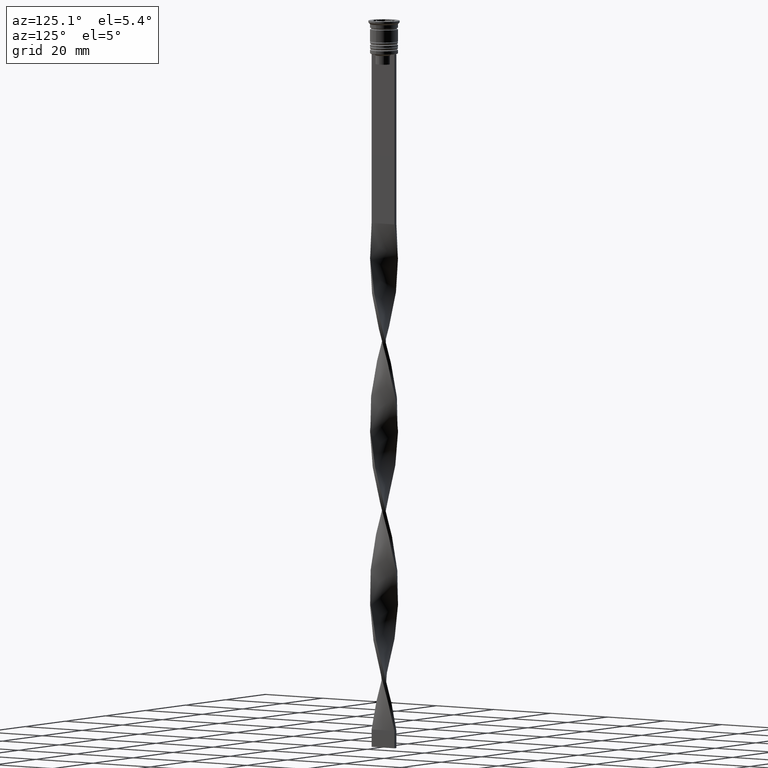
[diagram: clean part render]
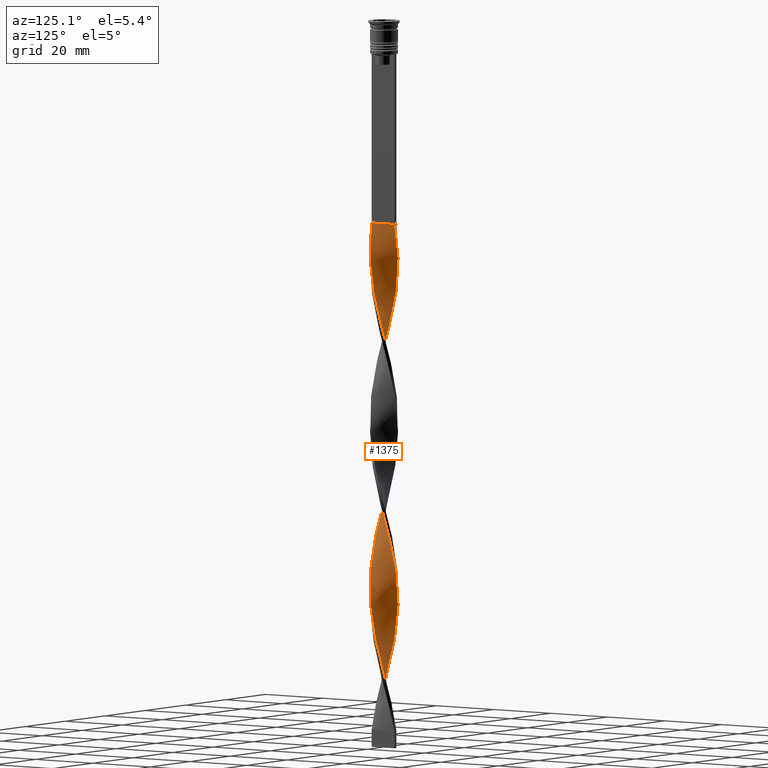
[diagram: same view with one face highlighted and labeled with its STEP entity id]
A machine part, auxiliary view. The second image highlights one B-rep face of the part: STEP entity #1375.
In plain terms, the highlighted face is a freeform B-spline surface patch.
Its self-contained STEP definition (entity closure, byte-faithful):
#2 = CARTESIAN_POINT ( 'NONE',  ( -3.856468655234276621, -1.231739002543614125, -134.3627450980391984 ) ) ;
#32 = CARTESIAN_POINT ( 'NONE',  ( -1.226484621108232531, -3.840017639827321805, -104.3039215686274446 ) ) ;
#51 = CARTESIAN_POINT ( 'NONE',  ( -3.856468655234276621, 1.231739002543613237, -177.3039215686274304 ) ) ;
#57 = CARTESIAN_POINT ( 'NONE',  ( 3.927262761293755400, -0.9829235285346255013, -77.10784313725490335 ) ) ;
#66 = CARTESIAN_POINT ( 'NONE',  ( 1.341092642212325936, -3.819817009255230822, -114.3235294117646959 ) ) ;
#67 = CARTESIAN_POINT ( 'NONE',  ( -0.5000000000000005551, -4.000000000000000000, -107.1666666666666572 ) ) ;
#73 = CARTESIAN_POINT ( 'NONE',  ( 4.017136395662697979, 0.5021420494578370253, -82.83333333333332860 ) ) ;
#83 = CARTESIAN_POINT ( 'NONE',  ( 3.710471077655234762, -1.575564781874742026, -127.2058823529411740 ) ) ;
#85 = CARTESIAN_POINT ( 'NONE',  ( -2.240090901653235100, -3.372169066272034499, -100.0098039215686327 ) ) ;
#93 = CARTESIAN_POINT ( 'NONE',  ( 1.341092642212326824, 3.819817009255229934, -100.0098039215686327 ) ) ;
#107 = CARTESIAN_POINT ( 'NONE',  ( 3.064287033196558152, 2.619187847059358365, -144.3823529411764639 ) ) ;
#109 = CARTESIAN_POINT ( 'NONE',  ( -2.530837219374230340, -3.137652461479778943, -98.57843137254901933 ) ) ;
#115 = CARTESIAN_POINT ( 'NONE',  ( 3.710471077655235206, 1.575564781874741138, -87.12745098039215463 ) ) ;
#120 = B_SPLINE_CURVE_WITH_KNOTS ( 'NONE', 3,
 ( #3017, #2732, #2446, #3684 ),
 .UNSPECIFIED., .F., .F.,
 ( 4, 4 ),
 ( 0.000000000000000000, 1.000000000000000000 ),
 .UNSPECIFIED. ) ;
#128 = CARTESIAN_POINT ( 'NONE',  ( -0.8706545849681186500, -3.953668176878985641, -203.0686274509803582 ) ) ;
#130 = CARTESIAN_POINT ( 'NONE',  ( -3.306990529297890724, -2.335239837431193788, -94.28431372549020750 ) ) ;
#137 = CARTESIAN_POINT ( 'NONE',  ( -1.582314657248345080, 3.726367102775659301, -111.4607843137254974 ) ) ;
#147 = CARTESIAN_POINT ( 'NONE',  ( 0.2435115214243305515, 4.023767157643892034, -104.3039215686274446 ) ) ;
#150 = CARTESIAN_POINT ( 'NONE',  ( -2.530837219374230340, -3.137652461479778943, -195.9117647058823479 ) ) ;
#159 = CARTESIAN_POINT ( 'NONE',  ( 4.017136395662697979, 0.5021420494578370253, -180.1666666666666288 ) ) ;
#171 = CARTESIAN_POINT ( 'NONE',  ( 0.6163684578805426195, 4.001202492166771485, -102.8725490196078312 ) ) ;
#173 = CARTESIAN_POINT ( 'NONE',  ( 3.064287033196558152, 2.619187847059358365, -144.3823529411764639 ) ) ;
#178 = CARTESIAN_POINT ( 'NONE',  ( -2.890751590931330828, -2.809547159157144591, -141.5196078431372371 ) ) ;
#185 = CARTESIAN_POINT ( 'NONE',  ( 2.821583537095227356, -2.903135856687522942, -68.51960784313723707 ) ) ;
#193 = CARTESIAN_POINT ( 'NONE',  ( 0.1293454150318811002, -4.046331823121016136, -154.4019607843137294 ) ) ;
#194 = EDGE_CURVE ( 'NONE', #1335, #691, #1128, .T. ) ;
#199 = CARTESIAN_POINT ( 'NONE',  ( -1.226484621108231421, 3.840017639827321805, -110.0294117647058698 ) ) ;
#201 = CARTESIAN_POINT ( 'NONE',  ( -3.493386227310586456, -2.011529931876905319, -190.1862745098039227 ) ) ;
#209 = CARTESIAN_POINT ( 'NONE',  ( 3.679781925323283076, -1.687820026322619293, -171.5784313725490620 ) ) ;
#221 = CARTESIAN_POINT ( 'NONE',  ( 3.564473500076194235, 1.919390561205868817, -185.8921568627451109 ) ) ;
#224 = CARTESIAN_POINT ( 'NONE',  ( -3.564473500076193790, 1.919390561205869261, -174.4411764705882320 ) ) ;
#236 = CARTESIAN_POINT ( 'NONE',  ( 3.357783987531980152, 2.230535068783684238, -187.3235294117646959 ) ) ;
#243 = CARTESIAN_POINT ( 'NONE',  ( 2.530837219374230340, -3.137652461479778943, -164.4215686274509665 ) ) ;
#249 = CARTESIAN_POINT ( 'NONE',  ( -3.306990529297891168, -2.335239837431193788, -94.28431372549020750 ) ) ;
#261 = CARTESIAN_POINT ( 'NONE',  ( 3.856468655234276621, 1.231739002543613681, -183.0294117647059124 ) ) ;
#268 = CARTESIAN_POINT ( 'NONE',  ( -2.890751590931329940, 2.809547159157145479, -72.81372549019607732 ) ) ;
#273 = CARTESIAN_POINT ( 'NONE',  ( -0.4999999999999994449, 4.000000000000000000, -204.5000000000000000 ) ) ;
#282 = CARTESIAN_POINT ( 'NONE',  ( -0.1293454150318815721, 4.046331823121016136, -203.0686274509803582 ) ) ;
#291 = CARTESIAN_POINT ( 'NONE',  ( -4.029070884911789996, 0.1287936502943097528, -84.26470588235294201 ) ) ;
#303 = CARTESIAN_POINT ( 'NONE',  ( 2.630408706874893365, 3.077414741952792188, -191.6176470588235077 ) ) ;
#311 = CARTESIAN_POINT ( 'NONE',  ( -3.357783987531980152, 2.230535068783684682, -75.67647058823528994 ) ) ;
#329 = CARTESIAN_POINT ( 'NONE',  ( 0.1293454150318809337, 4.046331823121015248, -59.93137254901961342 ) ) ;
#348 = CARTESIAN_POINT ( 'NONE',  ( 2.240090901653234656, 3.372169066272035831, -148.6764705882353326 ) ) ;
#350 = CARTESIAN_POINT ( 'NONE',  ( -2.890751590931329940, 2.809547159157145479, -72.81372549019607732 ) ) ;
#360 = CARTESIAN_POINT ( 'NONE',  ( 2.325278115975899951, 3.292883490705914795, -95.71568627450979250 ) ) ;
#369 = CARTESIAN_POINT ( 'NONE',  ( 2.020147525076905648, -3.508352239459040067, -117.1862745098039369 ) ) ;
#377 = CARTESIAN_POINT ( 'NONE',  ( 3.493386227310586012, -2.011529931876905763, -72.81372549019607732 ) ) ;
#387 = CARTESIAN_POINT ( 'NONE',  ( -1.680620083644616125, 3.664084624357134778, -164.4215686274509665 ) ) ;
#388 = CARTESIAN_POINT ( 'NONE',  ( 3.710471077655234762, -1.575564781874742026, -127.2058823529411740 ) ) ;
#393 = CARTESIAN_POINT ( 'NONE',  ( 4.041005374160881125, -0.2445547488692184912, -79.97058823529411598 ) ) ;
#407 = CARTESIAN_POINT ( 'NONE',  ( -1.911202779450789535, -3.549268084523846678, -101.4411764705882320 ) ) ;
#409 = CARTESIAN_POINT ( 'NONE',  ( -0.9787305500464337227, 3.910509750710999821, -64.22549019607842524 ) ) ;
#416 = CARTESIAN_POINT ( 'NONE',  ( -2.240090901653234212, 3.372169066272035387, -114.3235294117646959 ) ) ;
#431 = CARTESIAN_POINT ( 'NONE',  ( -2.530837219374230340, -3.137652461479778943, -98.57843137254901933 ) ) ;
#433 = CARTESIAN_POINT ( 'NONE',  ( -4.041005374160881125, -0.2445547488692189353, -85.69607843137254122 ) ) ;
#449 = CARTESIAN_POINT ( 'NONE',  ( 2.530837219374230340, -3.137652461479778943, -67.08823529411763786 ) ) ;
#451 = CARTESIAN_POINT ( 'NONE',  ( -3.357783987531980152, 2.230535068783684682, -173.0098039215686185 ) ) ;
#464 = CARTESIAN_POINT ( 'NONE',  ( 1.680620083644616125, 3.664084624357134778, -98.57843137254901933 ) ) ;
#484 = CARTESIAN_POINT ( 'NONE',  ( -3.493386227310586456, -2.011529931876905319, -190.1862745098039227 ) ) ;
#486 = CARTESIAN_POINT ( 'NONE',  ( 4.029070884911789996, -0.1287936502943111128, -132.9313725490196134 ) ) ;
#495 = CARTESIAN_POINT ( 'NONE',  ( 1.582314657248345080, -3.726367102775659301, -160.1274509803921831 ) ) ;
#502 = CARTESIAN_POINT ( 'NONE',  ( 3.151094474987767402, 2.541679576361500548, -91.42156862745096646 ) ) ;
#505 = CARTESIAN_POINT ( 'NONE',  ( 3.803522343308518572, 1.335371777428622897, -138.6568627450980387 ) ) ;
#519 = CARTESIAN_POINT ( 'NONE',  ( 4.041005374160881125, -0.2445547488692185190, -177.3039215686274304 ) ) ;
#521 = CARTESIAN_POINT ( 'NONE',  ( 1.911202779450789979, 3.549268084523846678, -150.1078431372548891 ) ) ;
#529 = CARTESIAN_POINT ( 'NONE',  ( 3.984134067727318040, -0.6137391387019215383, -175.8725490196078454 ) ) ;
#550 = CARTESIAN_POINT ( 'NONE',  ( -3.803522343308519016, -1.335371777428621565, -89.99019607843136725 ) ) ;
#563 = CARTESIAN_POINT ( 'NONE',  ( 1.582314657248345080, -3.726367102775659745, -160.1274509803922115 ) ) ;
#585 = CARTESIAN_POINT ( 'NONE',  ( -3.357783987531979708, -2.230535068783685571, -138.6568627450980387 ) ) ;
#606 = CARTESIAN_POINT ( 'NONE',  ( -2.890751590931330828, -2.809547159157144591, -141.5196078431372371 ) ) ;
#615 = CARTESIAN_POINT ( 'NONE',  ( -3.151094474987767402, 2.541679576361500104, -74.24509803921567652 ) ) ;
#653 = CARTESIAN_POINT ( 'NONE',  ( -3.151094474987767402, 2.541679576361500104, -171.5784313725490335 ) ) ;
#654 = CARTESIAN_POINT ( 'NONE',  ( -0.2435115214243304405, 4.023767157643892034, -61.36274509803921262 ) ) ;
#659 = CARTESIAN_POINT ( 'NONE',  ( 1.911202779450789535, -3.549268084523846678, -64.22549019607842524 ) ) ;
#671 = CARTESIAN_POINT ( 'NONE',  ( 3.493386227310586900, 2.011529931876904875, -141.5196078431372371 ) ) ;
#673 = CARTESIAN_POINT ( 'NONE',  ( -3.564473500076193790, 1.919390561205869261, -77.10784313725490335 ) ) ;
#682 = CARTESIAN_POINT ( 'NONE',  ( 3.936802525448487522, 0.8669405260007247982, -84.26470588235294201 ) ) ;
#691 = VERTEX_POINT ( 'NONE', #2187 ) ;
#694 = CARTESIAN_POINT ( 'NONE',  ( -0.1293454150318806006, -4.046331823121015248, -108.5980392156862706 ) ) ;
#695 = CARTESIAN_POINT ( 'NONE',  ( 3.151094474987766514, -2.541679576361500992, -122.9117647058823621 ) ) ;
#700 = CARTESIAN_POINT ( 'NONE',  ( -0.1293454150318815721, 4.046331823121016136, -105.7352941176470722 ) ) ;
#710 = CARTESIAN_POINT ( 'NONE',  ( 3.984134067727318040, 0.6137391387019215383, -135.7941176470588118 ) ) ;
#711 = CARTESIAN_POINT ( 'NONE',  ( -2.630408706874892921, 3.077414741952791744, -71.38235294117646390 ) ) ;
#727 = CARTESIAN_POINT ( 'NONE',  ( -2.240090901653235544, -3.372169066272034499, -100.0098039215686327 ) ) ;
#729 = CARTESIAN_POINT ( 'NONE',  ( -1.341092642212326380, 3.819817009255230822, -65.65686274509803866 ) ) ;
#751 = CARTESIAN_POINT ( 'NONE',  ( -3.984134067727318040, 0.6137391387019228706, -127.2058823529411740 ) ) ;
#753 = CARTESIAN_POINT ( 'NONE',  ( -3.306990529297890724, -2.335239837431193788, -191.6176470588235077 ) ) ;
#758 = CARTESIAN_POINT ( 'NONE',  ( 4.041005374160881125, -0.2445547488692184912, -177.3039215686274588 ) ) ;
#766 = CARTESIAN_POINT ( 'NONE',  ( -0.8706545849681194271, 3.953668176878984752, -108.5980392156862706 ) ) ;
#768 = CARTESIAN_POINT ( 'NONE',  ( 4.041005374160881125, 0.2445547488692193516, -134.3627450980391984 ) ) ;
#774 = CARTESIAN_POINT ( 'NONE',  ( -4.017136395662697979, -0.5021420494578364702, -131.5000000000000000 ) ) ;
#780 = CARTESIAN_POINT ( 'NONE',  ( -3.493386227310585568, 2.011529931876906208, -121.4803921568627345 ) ) ;
#782 = CARTESIAN_POINT ( 'NONE',  ( -3.679781925323283076, -1.687820026322619738, -188.7549019607843093 ) ) ;
#792 = CARTESIAN_POINT ( 'NONE',  ( -0.6163684578805429526, -4.001202492166770597, -151.5392156862744741 ) ) ;
#802 = CARTESIAN_POINT ( 'NONE',  ( 3.856468655234276621, 1.231739002543613681, -85.69607843137254122 ) ) ;
#804 = CARTESIAN_POINT ( 'NONE',  ( -0.8706545849681186500, -3.953668176878986085, -203.0686274509803582 ) ) ;
#812 = CARTESIAN_POINT ( 'NONE',  ( -2.020147525076907424, -3.508352239459039623, -145.8137254901960489 ) ) ;
#819 = CARTESIAN_POINT ( 'NONE',  ( -1.911202779450789535, -3.549268084523846678, -198.7745098039215463 ) ) ;
#821 = CARTESIAN_POINT ( 'NONE',  ( 0.5000000000000000000, 4.000000000000000000, -155.8333333333333144 ) ) ;
#827 = CARTESIAN_POINT ( 'NONE',  ( -0.2435115214243293580, -4.023767157643892034, -152.9705882352941160 ) ) ;
#834 = CARTESIAN_POINT ( 'NONE',  ( 3.306990529297891168, -2.335239837431193788, -168.7156862745097783 ) ) ;
#859 = CARTESIAN_POINT ( 'NONE',  ( 2.020147525076906536, 3.508352239459040067, -194.4803921568627914 ) ) ;
#890 = CARTESIAN_POINT ( 'NONE',  ( 0.2435115214243305515, 4.023767157643892034, -201.6372549019607732 ) ) ;
#897 = CARTESIAN_POINT ( 'NONE',  ( -3.936802525448487522, -0.8669405260007234659, -132.9313725490196134 ) ) ;
#907 = CARTESIAN_POINT ( 'NONE',  ( 2.020147525076906980, 3.508352239459040067, -194.4803921568627629 ) ) ;
#919 = CARTESIAN_POINT ( 'NONE',  ( 2.821583537095227356, -2.903135856687522942, -165.8529411764705799 ) ) ;
#929 = CARTESIAN_POINT ( 'NONE',  ( -2.325278115975899507, 3.292883490705915239, -69.95098039215686470 ) ) ;
#940 = CARTESIAN_POINT ( 'NONE',  ( 0.5000000000000000000, -4.000000000000000000, -58.50000000000000000 ) ) ;
#950 = CARTESIAN_POINT ( 'NONE',  ( 2.530837219374231672, 3.137652461479777610, -147.2450980392156907 ) ) ;
#966 = CARTESIAN_POINT ( 'NONE',  ( -0.8706545849681186500, -3.953668176878985641, -105.7352941176470722 ) ) ;
#967 = CARTESIAN_POINT ( 'NONE',  ( -3.151094474987766958, 2.541679576361500104, -74.24509803921567652 ) ) ;
#974 = CARTESIAN_POINT ( 'NONE',  ( 3.984134067727318040, -0.6137391387019215383, -78.53921568627450256 ) ) ;
#986 = CARTESIAN_POINT ( 'NONE',  ( -3.564473500076194235, 1.919390561205869261, -174.4411764705882320 ) ) ;
#989 = CARTESIAN_POINT ( 'NONE',  ( 2.325278115975899507, -3.292883490705915239, -118.6176470588235219 ) ) ;
#997 = CARTESIAN_POINT ( 'NONE',  ( 3.803522343308519016, -1.335371777428622009, -75.67647058823528994 ) ) ;
#1009 = CARTESIAN_POINT ( 'NONE',  ( -3.927262761293754956, -0.9829235285346250572, -185.8921568627451109 ) ) ;
#1010 = CARTESIAN_POINT ( 'NONE',  ( 4.017136395662697979, -0.5021420494578380245, -131.5000000000000000 ) ) ;
#1024 = CARTESIAN_POINT ( 'NONE',  ( 2.821583537095227356, 2.903135856687522498, -145.8137254901960489 ) ) ;
#1026 = CARTESIAN_POINT ( 'NONE',  ( -3.493386227310586456, -2.011529931876905319, -92.85294117647057988 ) ) ;
#1030 = CARTESIAN_POINT ( 'NONE',  ( 0.8706545849681190941, -3.953668176878985197, -59.93137254901961342 ) ) ;
#1043 = CARTESIAN_POINT ( 'NONE',  ( -3.679781925323282632, 1.687820026322619960, -122.9117647058823479 ) ) ;
#1046 = CARTESIAN_POINT ( 'NONE',  ( -2.020147525076906980, 3.508352239459040067, -68.51960784313725128 ) ) ;
#1053 = CARTESIAN_POINT ( 'NONE',  ( -4.029070884911789996, -0.1287936502943096417, -130.0686274509803866 ) ) ;
#1066 = CARTESIAN_POINT ( 'NONE',  ( 2.890751590931330384, 2.809547159157145035, -92.85294117647057988 ) ) ;
#1068 = CARTESIAN_POINT ( 'NONE',  ( -1.226484621108232531, -3.840017639827321805, -201.6372549019607732 ) ) ;
#1081 = CARTESIAN_POINT ( 'NONE',  ( 2.020147525076906536, 3.508352239459040067, -97.14705882352939170 ) ) ;
#1094 = CARTESIAN_POINT ( 'NONE',  ( -0.5000000000000005551, -4.000000000000000000, -204.5000000000000000 ) ) ;
#1096 = CARTESIAN_POINT ( 'NONE',  ( 2.530837219374231672, 3.137652461479777610, -147.2450980392156907 ) ) ;
#1101 = EDGE_LOOP ( 'NONE', ( #1473, #2051, #1794, #2379 ) ) ;
#1105 = CARTESIAN_POINT ( 'NONE',  ( 3.564473500076193790, 1.919390561205868817, -185.8921568627451109 ) ) ;
#1115 = CARTESIAN_POINT ( 'NONE',  ( -1.911202779450790201, 3.549268084523846234, -112.8921568627450966 ) ) ;
#1128 =( BOUNDED_CURVE ( )  B_SPLINE_CURVE ( 2, ( #3738, #1030, #2261, #2513, #659, #1359, #1965, #2246, #2869, #2830, #377, #3409, #997, #57, #974, #393, #2207, #73, #682, #1885, #115, #2848, #3101, #1662, #1338, #3444, #360, #1605, #2228, #93, #2531, #3426, #2888, #700, #1282, #1923, #3174, #137, #3136, #416, #1587, #1941, #1321, #2550, #1641, #2585, #2307, #2038, #3516, #3553, #1053, #774, #3537, #3852, #2003, #2610, #2288, #2325, #178, #1703, #3242, #812, #2933, #1681, #1379, #792, #827, #193, #2056, #1418, #3229, #495, #1736, #1399, #3259, #1757, #1722, #2964, #3483, #209, #1436, #2667, #529, #758, #2645, #159, #3830, #2983, #2950, #1105, #236, #1985, #3193, #3285, #1196, #907, #2380, #2405, #1842, #1457, #890, #2080, #273 ),
 .UNSPECIFIED., .F., .T. ) 
 B_SPLINE_CURVE_WITH_KNOTS ( ( 3, 2, 2, 2, 2, 2, 2, 2, 2, 2, 2, 2, 2, 2, 2, 2, 2, 2, 2, 2, 2, 2, 2, 2, 2, 2, 2, 2, 2, 2, 2, 2, 2, 2, 2, 2, 2, 2, 2, 2, 2, 2, 2, 2, 2, 2, 2, 2, 2, 2, 2, 3 ),
 ( 0.000000000000000000, 0.01470588235294117453, 0.02941176470588234906, 0.04411764705882353227, 0.05882352941176469813, 0.07352941176470588480, 0.08823529411764706454, 0.1029411764705882443, 0.1176470588235293963, 0.1323529411764705899, 0.1470588235294117696, 0.1617647058823529493, 0.1764705882352941291, 0.1911764705882352811, 0.2058823529411764885, 0.2205882352941176405, 0.2352941176470587925, 0.2500000000000000000, 0.2647058823529411797, 0.2794117647058823595, 0.2941176470588235392, 0.3088235294117647189, 0.3235294117647058987, 0.3382352941176470229, 0.3529411764705882582, 0.3676470588235294379, 0.3823529411764705621, 0.3970588235294117418, 0.4117647058823529771, 0.4264705882352941013, 0.4411764705882352811, 0.4558823529411764608, 0.4705882352941175850, 0.4852941176470588203, 0.5000000000000000000, 0.5147058823529411242, 0.5294117647058823595, 0.5441176470588234837, 0.5588235294117647189, 0.5735294117647058432, 0.5882352941176470784, 0.6029411764705882026, 0.6176470588235294379, 0.6323529411764705621, 0.6470588235294117974, 0.6617647058823529216, 0.6764705882352940458, 0.6911764705882351700, 0.7058823529411765163, 0.7205882352941176405, 0.7352941176470588758, 0.7500000000000000000 ),
 .UNSPECIFIED. ) 
 CURVE ( )  GEOMETRIC_REPRESENTATION_ITEM ( )  RATIONAL_B_SPLINE_CURVE ( ( 1.000000000000000000, 0.9957341762950344677, 1.000000000000000000, 0.9957341762950344677, 1.000000000000000000, 0.9957341762950344677, 1.000000000000000000, 0.9957341762950344677, 1.000000000000000000, 0.9957341762950344677, 1.000000000000000000, 0.9957341762950344677, 1.000000000000000000, 0.9957341762950344677, 1.000000000000000000, 0.9957341762950344677, 1.000000000000000000, 0.9957341762950344677, 1.000000000000000000, 0.9957341762950344677, 1.000000000000000000, 0.9957341762950344677, 1.000000000000000000, 0.9957341762950344677, 1.000000000000000000, 0.9957341762950344677, 1.000000000000000000, 0.9957341762950344677, 1.000000000000000000, 0.9957341762950344677, 1.000000000000000000, 0.9957341762950344677, 1.000000000000000000, 0.9957341762950344677, 1.000000000000000000, 0.9957341762950344677, 1.000000000000000000, 0.9957341762950344677, 1.000000000000000000, 0.9957341762950344677, 1.000000000000000000, 0.9957341762950344677, 1.000000000000000000, 0.9957341762950344677, 1.000000000000000000, 0.9957341762950344677, 1.000000000000000000, 0.9957341762950344677, 1.000000000000000000, 0.9957341762950344677, 1.000000000000000000, 0.9957341762950344677, 1.000000000000000000, 0.9957341762950344677, 1.000000000000000000, 0.9957341762950344677, 1.000000000000000000, 0.9957341762950344677, 1.000000000000000000, 0.9957341762950344677, 1.000000000000000000, 0.9957341762950344677, 1.000000000000000000, 0.9957341762950344677, 1.000000000000000000, 0.9957341762950344677, 1.000000000000000000, 0.9957341762950344677, 1.000000000000000000, 0.9957341762950344677, 1.000000000000000000, 0.9957341762950344677, 1.000000000000000000, 0.9957341762950344677, 1.000000000000000000, 0.9957341762950344677, 1.000000000000000000, 0.9957341762950344677, 1.000000000000000000, 0.9957341762950344677, 1.000000000000000000, 0.9957341762950344677, 1.000000000000000000, 0.9957341762950344677, 1.000000000000000000, 0.9957341762950344677, 1.000000000000000000, 0.9957341762950344677, 1.000000000000000000, 0.9957341762950344677, 1.000000000000000000, 0.9957341762950344677, 1.000000000000000000, 0.9957341762950344677, 1.000000000000000000, 0.9957341762950344677, 1.000000000000000000, 0.9957341762950344677, 1.000000000000000000, 0.9957341762950344677, 1.000000000000000000, 0.9957341762950344677, 1.000000000000000000 ) ) 
 REPRESENTATION_ITEM ( '' )  );
#1143 = CARTESIAN_POINT ( 'NONE',  ( -0.6163684578805417313, 4.001202492166771485, -62.79411764705881893 ) ) ;
#1156 = CARTESIAN_POINT ( 'NONE',  ( 3.710471077655235206, 1.575564781874741138, -184.4607843137254690 ) ) ;
#1182 = CARTESIAN_POINT ( 'NONE',  ( -0.9787305500464340557, -3.910509750710999821, -150.1078431372548891 ) ) ;
#1196 = CARTESIAN_POINT ( 'NONE',  ( 2.325278115975899951, 3.292883490705914795, -193.0490196078431211 ) ) ;
#1204 = CARTESIAN_POINT ( 'NONE',  ( 4.029070884911789108, 0.1287936502943091699, -178.7352941176470438 ) ) ;
#1212 = CARTESIAN_POINT ( 'NONE',  ( -1.680620083644616125, 3.664084624357134778, -67.08823529411763786 ) ) ;
#1224 = CARTESIAN_POINT ( 'NONE',  ( -2.325278115975899063, -3.292883490705915683, -144.3823529411764639 ) ) ;
#1251 = CARTESIAN_POINT ( 'NONE',  ( 3.856468655234277509, -1.231739002543611905, -128.6372549019607447 ) ) ;
#1271 =( BOUNDED_CURVE ( )  B_SPLINE_CURVE ( 2, ( #2864, #1656, #654, #3113, #409, #729, #2882, #1046, #3696, #711, #350, #967, #2842, #673, #3167, #3439, #3455, #1957, #2561, #433, #1598, #3751, #2822, #3422, #1026, #130, #2200, #1292, #109, #85, #3384, #3714, #3094, #1333, #67, #2257, #1577, #2805, #1274, #2506, #3400, #1899, #989, #1314, #2240, #695, #1918, #3133, #388, #2546, #3734, #1010, #486, #768, #2923, #1715, #505, #2316, #3494, #3545, #173, #1372, #1096, #1730, #521, #3477, #1998, #3236, #821, #1746, #3862, #2601, #3528, #3188, #2048, #3251, #1695, #1393, #2974, #3792, #451, #224, #3822, #1449, #2335, #3220, #3507, #2959, #3204, #2677, #2276, #782, #201, #753, #1426, #2031, #150, #1980, #1674, #2903, #1068, #804, #2657 ),
 .UNSPECIFIED., .F., .T. ) 
 B_SPLINE_CURVE_WITH_KNOTS ( ( 3, 2, 2, 2, 2, 2, 2, 2, 2, 2, 2, 2, 2, 2, 2, 2, 2, 2, 2, 2, 2, 2, 2, 2, 2, 2, 2, 2, 2, 2, 2, 2, 2, 2, 2, 2, 2, 2, 2, 2, 2, 2, 2, 2, 2, 2, 2, 2, 2, 2, 2, 3 ),
 ( 0.000000000000000000, 0.01470588235294117453, 0.02941176470588234906, 0.04411764705882353227, 0.05882352941176469813, 0.07352941176470588480, 0.08823529411764706454, 0.1029411764705882443, 0.1176470588235293963, 0.1323529411764705899, 0.1470588235294117696, 0.1617647058823529493, 0.1764705882352941291, 0.1911764705882352811, 0.2058823529411764885, 0.2205882352941176405, 0.2352941176470587925, 0.2500000000000000000, 0.2647058823529411797, 0.2794117647058823595, 0.2941176470588235392, 0.3088235294117647189, 0.3235294117647058987, 0.3382352941176470229, 0.3529411764705882582, 0.3676470588235294379, 0.3823529411764705621, 0.3970588235294117418, 0.4117647058823529771, 0.4264705882352941013, 0.4411764705882352811, 0.4558823529411764608, 0.4705882352941175850, 0.4852941176470588203, 0.5000000000000000000, 0.5147058823529411242, 0.5294117647058823595, 0.5441176470588234837, 0.5588235294117647189, 0.5735294117647058432, 0.5882352941176470784, 0.6029411764705882026, 0.6176470588235294379, 0.6323529411764705621, 0.6470588235294117974, 0.6617647058823529216, 0.6764705882352940458, 0.6911764705882351700, 0.7058823529411765163, 0.7205882352941176405, 0.7352941176470588758, 0.7500000000000000000 ),
 .UNSPECIFIED. ) 
 CURVE ( )  GEOMETRIC_REPRESENTATION_ITEM ( )  RATIONAL_B_SPLINE_CURVE ( ( 1.000000000000000000, 0.9957341762950344677, 1.000000000000000000, 0.9957341762950344677, 1.000000000000000000, 0.9957341762950344677, 1.000000000000000000, 0.9957341762950344677, 1.000000000000000000, 0.9957341762950344677, 1.000000000000000000, 0.9957341762950344677, 1.000000000000000000, 0.9957341762950344677, 1.000000000000000000, 0.9957341762950344677, 1.000000000000000000, 0.9957341762950344677, 1.000000000000000000, 0.9957341762950344677, 1.000000000000000000, 0.9957341762950344677, 1.000000000000000000, 0.9957341762950344677, 1.000000000000000000, 0.9957341762950344677, 1.000000000000000000, 0.9957341762950344677, 1.000000000000000000, 0.9957341762950344677, 1.000000000000000000, 0.9957341762950344677, 1.000000000000000000, 0.9957341762950344677, 1.000000000000000000, 0.9957341762950344677, 1.000000000000000000, 0.9957341762950344677, 1.000000000000000000, 0.9957341762950344677, 1.000000000000000000, 0.9957341762950344677, 1.000000000000000000, 0.9957341762950344677, 1.000000000000000000, 0.9957341762950344677, 1.000000000000000000, 0.9957341762950344677, 1.000000000000000000, 0.9957341762950344677, 1.000000000000000000, 0.9957341762950344677, 1.000000000000000000, 0.9957341762950344677, 1.000000000000000000, 0.9957341762950344677, 1.000000000000000000, 0.9957341762950344677, 1.000000000000000000, 0.9957341762950344677, 1.000000000000000000, 0.9957341762950344677, 1.000000000000000000, 0.9957341762950344677, 1.000000000000000000, 0.9957341762950344677, 1.000000000000000000, 0.9957341762950344677, 1.000000000000000000, 0.9957341762950344677, 1.000000000000000000, 0.9957341762950344677, 1.000000000000000000, 0.9957341762950344677, 1.000000000000000000, 0.9957341762950344677, 1.000000000000000000, 0.9957341762950344677, 1.000000000000000000, 0.9957341762950344677, 1.000000000000000000, 0.9957341762950344677, 1.000000000000000000, 0.9957341762950344677, 1.000000000000000000, 0.9957341762950344677, 1.000000000000000000, 0.9957341762950344677, 1.000000000000000000, 0.9957341762950344677, 1.000000000000000000, 0.9957341762950344677, 1.000000000000000000, 0.9957341762950344677, 1.000000000000000000, 0.9957341762950344677, 1.000000000000000000, 0.9957341762950344677, 1.000000000000000000, 0.9957341762950344677, 1.000000000000000000, 0.9957341762950344677, 1.000000000000000000 ) ) 
 REPRESENTATION_ITEM ( '' )  );
#1273 = CARTESIAN_POINT ( 'NONE',  ( -4.029070884911789996, 0.1287936502943097528, -181.5980392156862706 ) ) ;
#1274 = CARTESIAN_POINT ( 'NONE',  ( 0.9787305500464342778, -3.910509750710998933, -112.8921568627450966 ) ) ;
#1282 = CARTESIAN_POINT ( 'NONE',  ( -0.4999999999999994449, 4.000000000000000000, -107.1666666666666572 ) ) ;
#1290 = CARTESIAN_POINT ( 'NONE',  ( 2.890751590931329496, -2.809547159157145924, -121.4803921568627345 ) ) ;
#1292 = CARTESIAN_POINT ( 'NONE',  ( -2.821583537095227356, -2.903135856687522942, -97.14705882352940591 ) ) ;
#1312 = CARTESIAN_POINT ( 'NONE',  ( 1.911202779450789979, 3.549268084523846678, -150.1078431372548891 ) ) ;
#1314 = CARTESIAN_POINT ( 'NONE',  ( 2.630408706874893365, -3.077414741952791299, -120.0490196078431353 ) ) ;
#1321 = CARTESIAN_POINT ( 'NONE',  ( -3.064287033196558596, 2.619187847059357921, -118.6176470588235219 ) ) ;
#1332 = CARTESIAN_POINT ( 'NONE',  ( 1.226484621108231199, 3.840017639827321805, -152.9705882352941160 ) ) ;
#1333 = CARTESIAN_POINT ( 'NONE',  ( -0.8706545849681186500, -3.953668176878986085, -105.7352941176470722 ) ) ;
#1335 = VERTEX_POINT ( 'NONE', #2426 ) ;
#1338 = CARTESIAN_POINT ( 'NONE',  ( 2.890751590931330384, 2.809547159157145035, -92.85294117647057988 ) ) ;
#1350 = CARTESIAN_POINT ( 'NONE',  ( -3.306990529297891612, 2.335239837431193344, -120.0490196078431211 ) ) ;
#1359 = CARTESIAN_POINT ( 'NONE',  ( 2.240090901653234656, -3.372169066272035387, -65.65686274509803866 ) ) ;
#1369 = CARTESIAN_POINT ( 'NONE',  ( -2.530837219374230340, -3.137652461479778943, -195.9117647058823479 ) ) ;
#1372 = CARTESIAN_POINT ( 'NONE',  ( 2.821583537095227356, 2.903135856687522498, -145.8137254901960489 ) ) ;
#1375 = ADVANCED_FACE ( 'NONE', ( #3300 ), #3181, .T. ) ;
#1379 = CARTESIAN_POINT ( 'NONE',  ( -0.9787305500464340557, -3.910509750710999821, -150.1078431372548891 ) ) ;
#1391 = CARTESIAN_POINT ( 'NONE',  ( 3.679781925323283076, -1.687820026322619293, -74.24509803921567652 ) ) ;
#1393 = CARTESIAN_POINT ( 'NONE',  ( -2.630408706874892921, 3.077414741952791744, -168.7156862745097783 ) ) ;
#1399 = CARTESIAN_POINT ( 'NONE',  ( 2.240090901653234656, -3.372169066272035387, -162.9901960784313530 ) ) ;
#1407 = CARTESIAN_POINT ( 'NONE',  ( 3.064287033196558596, -2.619187847059357921, -69.95098039215686470 ) ) ;
#1418 = CARTESIAN_POINT ( 'NONE',  ( 0.8706545849681190941, -3.953668176878985197, -157.2647058823529278 ) ) ;
#1424 = CARTESIAN_POINT ( 'NONE',  ( -2.240090901653235544, -3.372169066272034499, -197.3431372549019898 ) ) ;
#1426 = CARTESIAN_POINT ( 'NONE',  ( -3.064287033196559040, -2.619187847059357477, -193.0490196078431211 ) ) ;
#1436 = CARTESIAN_POINT ( 'NONE',  ( 3.803522343308519016, -1.335371777428622009, -173.0098039215686185 ) ) ;
#1447 = CARTESIAN_POINT ( 'NONE',  ( 2.325278115975899951, 3.292883490705914795, -193.0490196078431211 ) ) ;
#1449 = CARTESIAN_POINT ( 'NONE',  ( -3.856468655234277065, 1.231739002543613237, -177.3039215686274588 ) ) ;
#1457 = CARTESIAN_POINT ( 'NONE',  ( 0.6163684578805426195, 4.001202492166770597, -200.2058823529411882 ) ) ;
#1464 = CARTESIAN_POINT ( 'NONE',  ( 3.357783987531980152, 2.230535068783684238, -187.3235294117646959 ) ) ;
#1473 = ORIENTED_EDGE ( 'NONE', *, *, #2428, .F. ) ;
#1482 = CARTESIAN_POINT ( 'NONE',  ( 2.890751590931330384, 2.809547159157145035, -190.1862745098039227 ) ) ;
#1504 = VECTOR ( 'NONE', #2170, 1000.000000000000000 ) ;
#1506 = CARTESIAN_POINT ( 'NONE',  ( -1.680620083644617901, -3.664084624357133446, -147.2450980392156907 ) ) ;
#1533 = CARTESIAN_POINT ( 'NONE',  ( -3.856468655234276621, 1.231739002543613237, -79.97058823529411598 ) ) ;
#1550 = VERTEX_POINT ( 'NONE', #1911 ) ;
#1576 = CARTESIAN_POINT ( 'NONE',  ( -0.6163684578805417313, 4.001202492166771485, -160.1274509803922115 ) ) ;
#1577 = CARTESIAN_POINT ( 'NONE',  ( 0.2435115214243295800, -4.023767157643892034, -110.0294117647058698 ) ) ;
#1587 = CARTESIAN_POINT ( 'NONE',  ( -2.530837219374230784, 3.137652461479778498, -115.7549019607843093 ) ) ;
#1597 = CARTESIAN_POINT ( 'NONE',  ( -1.341092642212326380, 3.819817009255230822, -162.9901960784313815 ) ) ;
#1598 = CARTESIAN_POINT ( 'NONE',  ( -3.984134067727318040, -0.6137391387019219824, -87.12745098039215463 ) ) ;
#1605 = CARTESIAN_POINT ( 'NONE',  ( 2.020147525076906980, 3.508352239459040067, -97.14705882352940591 ) ) ;
#1615 = CARTESIAN_POINT ( 'NONE',  ( -3.984134067727318040, -0.6137391387019219824, -184.4607843137254690 ) ) ;
#1630 = CARTESIAN_POINT ( 'NONE',  ( -2.325278115975899507, 3.292883490705915239, -167.2843137254901933 ) ) ;
#1641 = CARTESIAN_POINT ( 'NONE',  ( -3.493386227310585568, 2.011529931876906208, -121.4803921568627345 ) ) ;
#1654 = CARTESIAN_POINT ( 'NONE',  ( 4.029070884911789108, 0.1287936502943091699, -81.40196078431371518 ) ) ;
#1656 = CARTESIAN_POINT ( 'NONE',  ( 0.1293454150318809337, 4.046331823121015248, -59.93137254901961342 ) ) ;
#1662 = CARTESIAN_POINT ( 'NONE',  ( 3.151094474987766958, 2.541679576361500548, -91.42156862745098067 ) ) ;
#1672 = CARTESIAN_POINT ( 'NONE',  ( 3.936802525448487522, 0.8669405260007247982, -84.26470588235294201 ) ) ;
#1674 = CARTESIAN_POINT ( 'NONE',  ( -1.911202779450789535, -3.549268084523846678, -198.7745098039215463 ) ) ;
#1681 = CARTESIAN_POINT ( 'NONE',  ( -1.341092642212325714, -3.819817009255231266, -148.6764705882353326 ) ) ;
#1691 = CARTESIAN_POINT ( 'NONE',  ( -1.582314657248345968, -3.726367102775659745, -200.2058823529411598 ) ) ;
#1695 = CARTESIAN_POINT ( 'NONE',  ( -2.325278115975899507, 3.292883490705915239, -167.2843137254901933 ) ) ;
#1703 = CARTESIAN_POINT ( 'NONE',  ( -2.630408706874892033, -3.077414741952792188, -142.9509803921568789 ) ) ;
#1713 = CARTESIAN_POINT ( 'NONE',  ( 0.8706545849681190941, -3.953668176878984752, -59.93137254901961342 ) ) ;
#1715 = CARTESIAN_POINT ( 'NONE',  ( 3.927262761293755400, 0.9829235285346239470, -137.2254901960784537 ) ) ;
#1722 = CARTESIAN_POINT ( 'NONE',  ( 3.064287033196558596, -2.619187847059357921, -167.2843137254901933 ) ) ;
#1728 = CARTESIAN_POINT ( 'NONE',  ( 3.306990529297891168, -2.335239837431193788, -71.38235294117646390 ) ) ;
#1730 = CARTESIAN_POINT ( 'NONE',  ( 2.240090901653234212, 3.372169066272035831, -148.6764705882353326 ) ) ;
#1736 = CARTESIAN_POINT ( 'NONE',  ( 1.911202779450789535, -3.549268084523846678, -161.5588235294117680 ) ) ;
#1744 = CARTESIAN_POINT ( 'NONE',  ( 0.8706545849681190941, -3.953668176878984752, -157.2647058823529278 ) ) ;
#1746 = CARTESIAN_POINT ( 'NONE',  ( 0.1293454150318809337, 4.046331823121015248, -157.2647058823529278 ) ) ;
#1757 = CARTESIAN_POINT ( 'NONE',  ( 2.821583537095227356, -2.903135856687522942, -165.8529411764705799 ) ) ;
#1776 = CARTESIAN_POINT ( 'NONE',  ( -3.679781925323283076, -1.687820026322619738, -91.42156862745096646 ) ) ;
#1788 = CARTESIAN_POINT ( 'NONE',  ( 3.064287033196558596, -2.619187847059357921, -167.2843137254901933 ) ) ;
#1794 = ORIENTED_EDGE ( 'NONE', *, *, #2885, .F. ) ;
#1809 = CARTESIAN_POINT ( 'NONE',  ( 0.5000000000000000000, -4.000000000000000000, -155.8333333333333144 ) ) ;
#1815 = CARTESIAN_POINT ( 'NONE',  ( -3.710471077655235206, 1.575564781874740694, -78.53921568627450256 ) ) ;
#1830 = CARTESIAN_POINT ( 'NONE',  ( 3.679781925323283076, -1.687820026322619293, -171.5784313725490335 ) ) ;
#1842 = CARTESIAN_POINT ( 'NONE',  ( 0.9787305500464337227, 3.910509750710999821, -198.7745098039215463 ) ) ;
#1875 = CARTESIAN_POINT ( 'NONE',  ( -3.357783987531980152, 2.230535068783684682, -173.0098039215686185 ) ) ;
#1885 = CARTESIAN_POINT ( 'NONE',  ( 3.856468655234277065, 1.231739002543613681, -85.69607843137254122 ) ) ;
#1898 = CARTESIAN_POINT ( 'NONE',  ( 0.5000000000000000000, 4.000000000000000000, -155.8333333333333144 ) ) ;
#1899 = CARTESIAN_POINT ( 'NONE',  ( 2.020147525076906092, -3.508352239459040067, -117.1862745098039227 ) ) ;
#1911 = CARTESIAN_POINT ( 'NONE',  ( -0.5000000000000005551, -4.000000000000000000, -204.5000000000000000 ) ) ;
#1916 = CARTESIAN_POINT ( 'NONE',  ( -4.017136395662697979, 0.5021420494578374694, -180.1666666666666288 ) ) ;
#1918 = CARTESIAN_POINT ( 'NONE',  ( 3.357783987531981040, -2.230535068783683350, -124.3431372549019471 ) ) ;
#1923 = CARTESIAN_POINT ( 'NONE',  ( -0.8706545849681194271, 3.953668176878985197, -108.5980392156862706 ) ) ;
#1934 = CARTESIAN_POINT ( 'NONE',  ( -2.890751590931329940, 2.809547159157145479, -170.1470588235293917 ) ) ;
#1941 = CARTESIAN_POINT ( 'NONE',  ( -2.821583537095226468, 2.903135856687523830, -117.1862745098039227 ) ) ;
#1955 = CARTESIAN_POINT ( 'NONE',  ( -3.064287033196559040, -2.619187847059357477, -95.71568627450979250 ) ) ;
#1957 = CARTESIAN_POINT ( 'NONE',  ( -4.017136395662697979, 0.5021420494578374694, -82.83333333333332860 ) ) ;
#1965 = CARTESIAN_POINT ( 'NONE',  ( 2.530837219374230340, -3.137652461479778943, -67.08823529411763786 ) ) ;
#1978 = CARTESIAN_POINT ( 'NONE',  ( -4.041005374160881125, 0.2445547488692170757, -128.6372549019607447 ) ) ;
#1980 = CARTESIAN_POINT ( 'NONE',  ( -2.240090901653235100, -3.372169066272034499, -197.3431372549019613 ) ) ;
#1985 = CARTESIAN_POINT ( 'NONE',  ( 3.151094474987766958, 2.541679576361500548, -188.7549019607843093 ) ) ;
#1996 = CARTESIAN_POINT ( 'NONE',  ( -0.4999999999999994449, 4.000000000000000000, -107.1666666666666572 ) ) ;
#1998 = CARTESIAN_POINT ( 'NONE',  ( 1.226484621108231199, 3.840017639827321805, -152.9705882352941160 ) ) ;
#2003 = CARTESIAN_POINT ( 'NONE',  ( -3.710471077655235206, -1.575564781874740694, -135.7941176470588118 ) ) ;
#2012 = CARTESIAN_POINT ( 'NONE',  ( -4.029070884911789996, -0.1287936502943096417, -130.0686274509803866 ) ) ;
#2029 = CARTESIAN_POINT ( 'NONE',  ( 4.041005374160881125, -0.2445547488692185190, -79.97058823529411598 ) ) ;
#2031 = CARTESIAN_POINT ( 'NONE',  ( -2.821583537095227356, -2.903135856687522942, -194.4803921568627629 ) ) ;
#2038 = CARTESIAN_POINT ( 'NONE',  ( -3.927262761293755400, 0.9829235285346252793, -125.7745098039216032 ) ) ;
#2045 = CARTESIAN_POINT ( 'NONE',  ( -3.064287033196558596, 2.619187847059357921, -118.6176470588235219 ) ) ;
#2048 = CARTESIAN_POINT ( 'NONE',  ( -1.680620083644616125, 3.664084624357134778, -164.4215686274509665 ) ) ;
#2051 = ORIENTED_EDGE ( 'NONE', *, *, #194, .T. ) ;
#2056 = CARTESIAN_POINT ( 'NONE',  ( 0.5000000000000000000, -4.000000000000000000, -155.8333333333333144 ) ) ;
#2065 = CARTESIAN_POINT ( 'NONE',  ( 0.2435115214243305515, 4.023767157643892034, -201.6372549019607732 ) ) ;
#2080 = CARTESIAN_POINT ( 'NONE',  ( -0.1293454150318815721, 4.046331823121016136, -203.0686274509803582 ) ) ;
#2089 = CARTESIAN_POINT ( 'NONE',  ( 3.493386227310586012, -2.011529931876905763, -170.1470588235293917 ) ) ;
#2115 = CARTESIAN_POINT ( 'NONE',  ( -3.564473500076194235, 1.919390561205869261, -77.10784313725490335 ) ) ;
#2121 = VERTEX_POINT ( 'NONE', #3898 ) ;
#2127 = CARTESIAN_POINT ( 'NONE',  ( 0.1293454150318810725, -4.046331823121016136, -154.4019607843137294 ) ) ;
#2150 = CARTESIAN_POINT ( 'NONE',  ( -0.6163684578805430636, -4.001202492166771485, -151.5392156862744741 ) ) ;
#2170 = DIRECTION ( 'NONE',  ( 0.000000000000000000, 1.000000000000000000, 0.000000000000000000 ) ) ;
#2180 = CARTESIAN_POINT ( 'NONE',  ( 1.582314657248346412, 3.726367102775658857, -151.5392156862744741 ) ) ;
#2187 = CARTESIAN_POINT ( 'NONE',  ( -0.4999999999999994449, 4.000000000000000000, -204.5000000000000000 ) ) ;
#2199 = CARTESIAN_POINT ( 'NONE',  ( 0.2435115214243295800, -4.023767157643892034, -110.0294117647058698 ) ) ;
#2200 = CARTESIAN_POINT ( 'NONE',  ( -3.064287033196559040, -2.619187847059357477, -95.71568627450979250 ) ) ;
#2207 = CARTESIAN_POINT ( 'NONE',  ( 4.029070884911789108, 0.1287936502943091699, -81.40196078431371518 ) ) ;
#2221 = CARTESIAN_POINT ( 'NONE',  ( -3.710471077655235206, 1.575564781874740694, -175.8725490196078454 ) ) ;
#2228 = CARTESIAN_POINT ( 'NONE',  ( 1.680620083644616125, 3.664084624357134778, -98.57843137254901933 ) ) ;
#2239 = CARTESIAN_POINT ( 'NONE',  ( 3.151094474987766958, -2.541679576361500992, -122.9117647058823479 ) ) ;
#2240 = CARTESIAN_POINT ( 'NONE',  ( 2.890751590931329496, -2.809547159157145924, -121.4803921568627345 ) ) ;
#2246 = CARTESIAN_POINT ( 'NONE',  ( 2.821583537095227356, -2.903135856687522942, -68.51960784313725128 ) ) ;
#2256 = CARTESIAN_POINT ( 'NONE',  ( -0.2435115214243304405, 4.023767157643892034, -158.6960784313725412 ) ) ;
#2257 = CARTESIAN_POINT ( 'NONE',  ( -0.1293454150318806006, -4.046331823121015248, -108.5980392156862706 ) ) ;
#2261 = CARTESIAN_POINT ( 'NONE',  ( 1.226484621108232309, -3.840017639827321805, -61.36274509803921262 ) ) ;
#2273 = CARTESIAN_POINT ( 'NONE',  ( -3.803522343308519016, 1.335371777428620899, -124.3431372549019471 ) ) ;
#2276 = CARTESIAN_POINT ( 'NONE',  ( -3.803522343308519016, -1.335371777428621565, -187.3235294117646959 ) ) ;
#2288 = CARTESIAN_POINT ( 'NONE',  ( -3.357783987531979708, -2.230535068783685571, -138.6568627450980387 ) ) ;
#2298 = CARTESIAN_POINT ( 'NONE',  ( 2.630408706874893365, 3.077414741952792188, -94.28431372549020750 ) ) ;
#2307 = CARTESIAN_POINT ( 'NONE',  ( -3.803522343308519016, 1.335371777428620899, -124.3431372549019471 ) ) ;
#2314 = CARTESIAN_POINT ( 'NONE',  ( -2.240090901653234656, 3.372169066272035387, -114.3235294117646959 ) ) ;
#2316 = CARTESIAN_POINT ( 'NONE',  ( 3.679781925323283076, 1.687820026322619293, -140.0882352941176237 ) ) ;
#2325 = CARTESIAN_POINT ( 'NONE',  ( -3.151094474987766958, -2.541679576361500104, -140.0882352941176237 ) ) ;
#2332 = CARTESIAN_POINT ( 'NONE',  ( 3.803522343308519016, -1.335371777428622009, -75.67647058823528994 ) ) ;
#2335 = CARTESIAN_POINT ( 'NONE',  ( -3.936802525448486634, 0.8669405260007252423, -178.7352941176470438 ) ) ;
#2350 = CARTESIAN_POINT ( 'NONE',  ( -2.821583537095226468, 2.903135856687523830, -117.1862745098039369 ) ) ;
#2375 = CARTESIAN_POINT ( 'NONE',  ( -2.630408706874893365, 3.077414741952792188, -71.38235294117646390 ) ) ;
#2379 = ORIENTED_EDGE ( 'NONE', *, *, #3681, .F. ) ;
#2380 = CARTESIAN_POINT ( 'NONE',  ( 1.680620083644616125, 3.664084624357134778, -195.9117647058823479 ) ) ;
#2388 = CARTESIAN_POINT ( 'NONE',  ( -3.564473500076195123, -1.919390561205867707, -137.2254901960784821 ) ) ;
#2405 = CARTESIAN_POINT ( 'NONE',  ( 1.341092642212326824, 3.819817009255229934, -197.3431372549019613 ) ) ;
#2417 = CARTESIAN_POINT ( 'NONE',  ( 1.911202779450789535, -3.549268084523846678, -161.5588235294117680 ) ) ;
#2426 = CARTESIAN_POINT ( 'NONE',  ( 0.5000000000000000000, -4.000000000000000000, -58.50000000000000000 ) ) ;
#2428 = EDGE_CURVE ( 'NONE', #1335, #2121, #2473, .T. ) ;
#2435 = CARTESIAN_POINT ( 'NONE',  ( -2.020147525076906980, -3.508352239459039623, -145.8137254901960489 ) ) ;
#2446 = CARTESIAN_POINT ( 'NONE',  ( -0.4999999999999997780, 1.333333333333333481, -204.5000000000000000 ) ) ;
#2453 = CARTESIAN_POINT ( 'NONE',  ( -0.2435115214243293580, -4.023767157643892034, -152.9705882352941160 ) ) ;
#2461 = CARTESIAN_POINT ( 'NONE',  ( 0.5000000000000000000, 4.000000000000000000, -58.50000000000000000 ) ) ;
#2473 = LINE ( 'NONE', #940, #1504 ) ;
#2487 = CARTESIAN_POINT ( 'NONE',  ( 4.029070884911789996, -0.1287936502943111128, -132.9313725490196134 ) ) ;
#2505 = CARTESIAN_POINT ( 'NONE',  ( 0.6163684578805417313, -4.001202492166771485, -111.4607843137254974 ) ) ;
#2506 = CARTESIAN_POINT ( 'NONE',  ( 1.341092642212325936, -3.819817009255230822, -114.3235294117646959 ) ) ;
#2513 = CARTESIAN_POINT ( 'NONE',  ( 1.582314657248345080, -3.726367102775659301, -62.79411764705881893 ) ) ;
#2522 = CARTESIAN_POINT ( 'NONE',  ( 3.936802525448487522, -0.8669405260007250202, -130.0686274509803866 ) ) ;
#2531 = CARTESIAN_POINT ( 'NONE',  ( 0.9787305500464337227, 3.910509750710999821, -101.4411764705882320 ) ) ;
#2545 = CARTESIAN_POINT ( 'NONE',  ( -3.936802525448486634, 0.8669405260007252423, -178.7352941176470438 ) ) ;
#2546 = CARTESIAN_POINT ( 'NONE',  ( 3.856468655234277954, -1.231739002543611905, -128.6372549019607732 ) ) ;
#2550 = CARTESIAN_POINT ( 'NONE',  ( -3.306990529297891168, 2.335239837431193344, -120.0490196078431353 ) ) ;
#2560 = CARTESIAN_POINT ( 'NONE',  ( 3.803522343308518572, 1.335371777428622897, -138.6568627450980387 ) ) ;
#2561 = CARTESIAN_POINT ( 'NONE',  ( -4.029070884911789996, 0.1287936502943097528, -84.26470588235294201 ) ) ;
#2576 = CARTESIAN_POINT ( 'NONE',  ( 0.5000000000000000000, -4.000000000000000000, -58.50000000000000000 ) ) ;
#2585 = CARTESIAN_POINT ( 'NONE',  ( -3.679781925323282632, 1.687820026322620182, -122.9117647058823621 ) ) ;
#2598 = CARTESIAN_POINT ( 'NONE',  ( 3.984134067727318040, -0.6137391387019215383, -78.53921568627450256 ) ) ;
#2601 = CARTESIAN_POINT ( 'NONE',  ( -0.6163684578805417313, 4.001202492166770597, -160.1274509803921831 ) ) ;
#2610 = CARTESIAN_POINT ( 'NONE',  ( -3.564473500076194679, -1.919390561205867707, -137.2254901960784537 ) ) ;
#2620 = CARTESIAN_POINT ( 'NONE',  ( -3.306990529297891168, -2.335239837431193788, -191.6176470588235077 ) ) ;
#2635 = CARTESIAN_POINT ( 'NONE',  ( 1.911202779450789535, -3.549268084523846678, -64.22549019607842524 ) ) ;
#2645 = CARTESIAN_POINT ( 'NONE',  ( 4.029070884911789108, 0.1287936502943091699, -178.7352941176470438 ) ) ;
#2654 = CARTESIAN_POINT ( 'NONE',  ( -1.582314657248345080, 3.726367102775659745, -111.4607843137254974 ) ) ;
#2657 = CARTESIAN_POINT ( 'NONE',  ( -0.5000000000000005551, -4.000000000000000000, -204.5000000000000000 ) ) ;
#2667 = CARTESIAN_POINT ( 'NONE',  ( 3.927262761293755400, -0.9829235285346255013, -174.4411764705882320 ) ) ;
#2675 = CARTESIAN_POINT ( 'NONE',  ( 0.6163684578805426195, 4.001202492166771485, -200.2058823529411598 ) ) ;
#2677 = CARTESIAN_POINT ( 'NONE',  ( -3.927262761293755400, -0.9829235285346250572, -185.8921568627451109 ) ) ;
#2694 = CARTESIAN_POINT ( 'NONE',  ( 1.226484621108232309, -3.840017639827321805, -158.6960784313725412 ) ) ;
#2701 = CARTESIAN_POINT ( 'NONE',  ( -4.017136395662697979, 0.5021420494578374694, -82.83333333333332860 ) ) ;
#2714 = CARTESIAN_POINT ( 'NONE',  ( -3.151094474987767402, -2.541679576361500104, -140.0882352941176237 ) ) ;
#2732 = CARTESIAN_POINT ( 'NONE',  ( -0.5000000000000002220, -1.333333333333333481, -204.5000000000000000 ) ) ;
#2742 = CARTESIAN_POINT ( 'NONE',  ( 1.680620083644616125, 3.664084624357134778, -195.9117647058823479 ) ) ;
#2759 = CARTESIAN_POINT ( 'NONE',  ( 0.9787305500464337227, 3.910509750710999821, -198.7745098039215463 ) ) ;
#2766 = CARTESIAN_POINT ( 'NONE',  ( -3.984134067727318040, -0.6137391387019219824, -87.12745098039215463 ) ) ;
#2783 = CARTESIAN_POINT ( 'NONE',  ( 3.357783987531981040, -2.230535068783683350, -124.3431372549019471 ) ) ;
#2804 = CARTESIAN_POINT ( 'NONE',  ( -2.630408706874893365, 3.077414741952792188, -168.7156862745097783 ) ) ;
#2805 = CARTESIAN_POINT ( 'NONE',  ( 0.6163684578805417313, -4.001202492166770597, -111.4607843137254974 ) ) ;
#2821 = CARTESIAN_POINT ( 'NONE',  ( -0.5000000000000005551, -4.000000000000000000, -107.1666666666666572 ) ) ;
#2822 = CARTESIAN_POINT ( 'NONE',  ( -3.803522343308519016, -1.335371777428621565, -89.99019607843136725 ) ) ;
#2830 = CARTESIAN_POINT ( 'NONE',  ( 3.306990529297890724, -2.335239837431193788, -71.38235294117646390 ) ) ;
#2840 = CARTESIAN_POINT ( 'NONE',  ( -1.582314657248345968, -3.726367102775659745, -102.8725490196078312 ) ) ;
#2842 = CARTESIAN_POINT ( 'NONE',  ( -3.357783987531980152, 2.230535068783684682, -75.67647058823528994 ) ) ;
#2848 = CARTESIAN_POINT ( 'NONE',  ( 3.564473500076193790, 1.919390561205868817, -88.55882352941175384 ) ) ;
#2863 = CARTESIAN_POINT ( 'NONE',  ( 2.325278115975899507, -3.292883490705915239, -118.6176470588235219 ) ) ;
#2864 = CARTESIAN_POINT ( 'NONE',  ( 0.5000000000000000000, 4.000000000000000000, -58.50000000000000000 ) ) ;
#2869 = CARTESIAN_POINT ( 'NONE',  ( 3.064287033196558596, -2.619187847059357921, -69.95098039215686470 ) ) ;
#2880 = CARTESIAN_POINT ( 'NONE',  ( -2.530837219374230784, 3.137652461479778498, -115.7549019607843093 ) ) ;
#2882 = CARTESIAN_POINT ( 'NONE',  ( -1.680620083644616125, 3.664084624357134778, -67.08823529411763786 ) ) ;
#2885 = EDGE_CURVE ( 'NONE', #1550, #691, #120, .T. ) ;
#2888 = CARTESIAN_POINT ( 'NONE',  ( 0.2435115214243305515, 4.023767157643892034, -104.3039215686274446 ) ) ;
#2901 = CARTESIAN_POINT ( 'NONE',  ( 3.710471077655235206, 1.575564781874741138, -87.12745098039215463 ) ) ;
#2903 = CARTESIAN_POINT ( 'NONE',  ( -1.582314657248345968, -3.726367102775659301, -200.2058823529411882 ) ) ;
#2920 = CARTESIAN_POINT ( 'NONE',  ( -3.064287033196559040, -2.619187847059357477, -193.0490196078431211 ) ) ;
#2923 = CARTESIAN_POINT ( 'NONE',  ( 3.984134067727318040, 0.6137391387019215383, -135.7941176470588118 ) ) ;
#2933 = CARTESIAN_POINT ( 'NONE',  ( -1.680620083644617901, -3.664084624357133446, -147.2450980392156907 ) ) ;
#2940 = CARTESIAN_POINT ( 'NONE',  ( 1.582314657248345080, -3.726367102775659745, -62.79411764705881893 ) ) ;
#2950 = CARTESIAN_POINT ( 'NONE',  ( 3.710471077655235206, 1.575564781874741138, -184.4607843137254690 ) ) ;
#2957 = CARTESIAN_POINT ( 'NONE',  ( 1.341092642212326824, 3.819817009255229934, -100.0098039215686327 ) ) ;
#2959 = CARTESIAN_POINT ( 'NONE',  ( -4.041005374160881125, -0.2445547488692189353, -183.0294117647059124 ) ) ;
#2964 = CARTESIAN_POINT ( 'NONE',  ( 3.306990529297890724, -2.335239837431193788, -168.7156862745097783 ) ) ;
#2972 = CARTESIAN_POINT ( 'NONE',  ( 3.936802525448487522, 0.8669405260007247982, -181.5980392156862706 ) ) ;
#2974 = CARTESIAN_POINT ( 'NONE',  ( -2.890751590931329940, 2.809547159157145479, -170.1470588235293917 ) ) ;
#2983 = CARTESIAN_POINT ( 'NONE',  ( 3.856468655234277065, 1.231739002543613681, -183.0294117647059124 ) ) ;
#2996 = CARTESIAN_POINT ( 'NONE',  ( -3.493386227310586456, -2.011529931876905319, -92.85294117647057988 ) ) ;
#3008 = CARTESIAN_POINT ( 'NONE',  ( 3.927262761293754956, -0.9829235285346253903, -174.4411764705882320 ) ) ;
#3013 = CARTESIAN_POINT ( 'NONE',  ( -0.2435115214243304405, 4.023767157643892034, -61.36274509803921262 ) ) ;
#3017 = CARTESIAN_POINT ( 'NONE',  ( -0.5000000000000005551, -4.000000000000000000, -204.5000000000000000 ) ) ;
#3024 = CARTESIAN_POINT ( 'NONE',  ( 4.017136395662697979, 0.5021420494578370253, -180.1666666666666288 ) ) ;
#3030 = CARTESIAN_POINT ( 'NONE',  ( -2.020147525076906536, 3.508352239459040067, -68.51960784313723707 ) ) ;
#3047 = CARTESIAN_POINT ( 'NONE',  ( 1.341092642212326824, 3.819817009255229934, -197.3431372549019898 ) ) ;
#3054 = CARTESIAN_POINT ( 'NONE',  ( -0.9787305500464337227, 3.910509750710999821, -64.22549019607842524 ) ) ;
#3091 = CARTESIAN_POINT ( 'NONE',  ( 1.680620083644616569, -3.664084624357134334, -115.7549019607843093 ) ) ;
#3094 = CARTESIAN_POINT ( 'NONE',  ( -1.226484621108232531, -3.840017639827321805, -104.3039215686274446 ) ) ;
#3101 = CARTESIAN_POINT ( 'NONE',  ( 3.357783987531980152, 2.230535068783684238, -89.99019607843136725 ) ) ;
#3112 = CARTESIAN_POINT ( 'NONE',  ( 0.1293454150318809337, 4.046331823121015248, -157.2647058823529278 ) ) ;
#3113 = CARTESIAN_POINT ( 'NONE',  ( -0.6163684578805417313, 4.001202492166770597, -62.79411764705881893 ) ) ;
#3132 = CARTESIAN_POINT ( 'NONE',  ( -4.041005374160881125, -0.2445547488692189630, -183.0294117647059124 ) ) ;
#3133 = CARTESIAN_POINT ( 'NONE',  ( 3.564473500076193790, -1.919390561205869039, -125.7745098039216032 ) ) ;
#3136 = CARTESIAN_POINT ( 'NONE',  ( -1.911202779450790201, 3.549268084523846234, -112.8921568627450966 ) ) ;
#3146 = CARTESIAN_POINT ( 'NONE',  ( 2.630408706874893809, -3.077414741952791744, -120.0490196078431211 ) ) ;
#3166 = CARTESIAN_POINT ( 'NONE',  ( 0.9787305500464342778, -3.910509750710998933, -112.8921568627450966 ) ) ;
#3167 = CARTESIAN_POINT ( 'NONE',  ( -3.710471077655235206, 1.575564781874740694, -78.53921568627450256 ) ) ;
#3174 = CARTESIAN_POINT ( 'NONE',  ( -1.226484621108231421, 3.840017639827321805, -110.0294117647058698 ) ) ;
#3181 =( BOUNDED_SURFACE ( )  B_SPLINE_SURFACE ( 1, 2, ( 
 ( #2461, #329, #3013, #1143, #3054, #3653, #1212, #3030, #929, #2375, #268, #615, #311, #2115, #1815, #1533, #3569, #2701, #291, #3632, #2766, #3278, #550, #1776, #2996, #249, #1955, #3421, #431, #727, #407, #2840, #32, #966, #2821, #694, #2199, #2505, #3166, #66, #3091, #369, #2863, #3146, #1290, #2239, #2783, #3437, #83, #1251, #2522, #3398, #2487, #3694, #710, #3712, #2560, #3678, #671, #3732, #107, #1024, #950, #348, #1312, #2180, #1332, #3750, #1898, #3112, #2256, #1576, #3383, #1597, #387, #3454, #1630, #2804, #1934, #653, #1875, #986, #2221, #51, #2545, #1916, #1273, #3132, #1615, #1009, #3217, #3840, #484, #2620, #2920, #3820, #1369, #1424, #819, #1691, #3525, #128, #1094 ),
 ( #2576, #1713, #3185, #2940, #2635, #3202, #449, #185, #1407, #1728, #3475, #1391, #2332, #3767, #2598, #2029, #1654, #3806, #1672, #802, #2901, #3790, #3234, #502, #1066, #2298, #3249, #1081, #464, #2957, #3543, #171, #147, #3492, #1996, #766, #199, #2654, #1115, #2314, #2880, #2350, #2045, #1350, #780, #1043, #2273, #3505, #751, #1978, #2012, #3293, #897, #2, #3268, #2388, #585, #2714, #606, #3584, #1224, #2435, #1506, #3645, #1182, #2150, #2453, #2127, #1809, #1744, #2694, #563, #2417, #3881, #243, #919, #1788, #834, #2089, #1830, #3331, #3008, #3927, #519, #1204, #3024, #2972, #261, #1156, #221, #1464, #3625, #1482, #303, #1447, #859, #2742, #3047, #2759, #2675, #2065, #282, #3860 ) ),
 .UNSPECIFIED., .F., .F., .F. ) 
 B_SPLINE_SURFACE_WITH_KNOTS ( ( 2, 2 ),
 ( 3, 2, 2, 2, 2, 2, 2, 2, 2, 2, 2, 2, 2, 2, 2, 2, 2, 2, 2, 2, 2, 2, 2, 2, 2, 2, 2, 2, 2, 2, 2, 2, 2, 2, 2, 2, 2, 2, 2, 2, 2, 2, 2, 2, 2, 2, 2, 2, 2, 2, 2, 3 ),
 ( 0.000000000000000000, 1.000000000000000000 ),
 ( 0.000000000000000000, 0.01470588235294117627, 0.02941176470588235253, 0.04411764705882353227, 0.05882352941176470507, 0.07352941176470588480, 0.08823529411764706454, 0.1029411764705882304, 0.1176470588235294101, 0.1323529411764705899, 0.1470588235294117696, 0.1617647058823529493, 0.1764705882352941291, 0.1911764705882352811, 0.2058823529411764608, 0.2205882352941176405, 0.2352941176470588203, 0.2500000000000000000, 0.2647058823529411797, 0.2794117647058823595, 0.2941176470588235392, 0.3088235294117647189, 0.3235294117647058987, 0.3382352941176470784, 0.3529411764705882582, 0.3676470588235294379, 0.3823529411764705621, 0.3970588235294117418, 0.4117647058823529216, 0.4264705882352941013, 0.4411764705882352811, 0.4558823529411764608, 0.4705882352941176405, 0.4852941176470588203, 0.5000000000000000000, 0.5147058823529411242, 0.5294117647058823595, 0.5441176470588234837, 0.5588235294117647189, 0.5735294117647058432, 0.5882352941176470784, 0.6029411764705882026, 0.6176470588235294379, 0.6323529411764705621, 0.6470588235294117974, 0.6617647058823529216, 0.6764705882352941568, 0.6911764705882352811, 0.7058823529411765163, 0.7205882352941176405, 0.7352941176470588758, 0.7500000000000000000 ),
 .UNSPECIFIED. ) 
 GEOMETRIC_REPRESENTATION_ITEM ( )  RATIONAL_B_SPLINE_SURFACE ( (
 ( 1.000000000000000000, 0.9957341762950344677, 1.000000000000000000, 0.9957341762950344677, 1.000000000000000000, 0.9957341762950344677, 1.000000000000000000, 0.9957341762950344677, 1.000000000000000000, 0.9957341762950344677, 1.000000000000000000, 0.9957341762950344677, 1.000000000000000000, 0.9957341762950344677, 1.000000000000000000, 0.9957341762950344677, 1.000000000000000000, 0.9957341762950344677, 1.000000000000000000, 0.9957341762950344677, 1.000000000000000000, 0.9957341762950344677, 1.000000000000000000, 0.9957341762950344677, 1.000000000000000000, 0.9957341762950344677, 1.000000000000000000, 0.9957341762950344677, 1.000000000000000000, 0.9957341762950344677, 1.000000000000000000, 0.9957341762950344677, 1.000000000000000000, 0.9957341762950344677, 1.000000000000000000, 0.9957341762950344677, 1.000000000000000000, 0.9957341762950344677, 1.000000000000000000, 0.9957341762950344677, 1.000000000000000000, 0.9957341762950344677, 1.000000000000000000, 0.9957341762950344677, 1.000000000000000000, 0.9957341762950344677, 1.000000000000000000, 0.9957341762950344677, 1.000000000000000000, 0.9957341762950344677, 1.000000000000000000, 0.9957341762950344677, 1.000000000000000000, 0.9957341762950344677, 1.000000000000000000, 0.9957341762950344677, 1.000000000000000000, 0.9957341762950344677, 1.000000000000000000, 0.9957341762950344677, 1.000000000000000000, 0.9957341762950344677, 1.000000000000000000, 0.9957341762950344677, 1.000000000000000000, 0.9957341762950344677, 1.000000000000000000, 0.9957341762950344677, 1.000000000000000000, 0.9957341762950344677, 1.000000000000000000, 0.9957341762950344677, 1.000000000000000000, 0.9957341762950344677, 1.000000000000000000, 0.9957341762950344677, 1.000000000000000000, 0.9957341762950344677, 1.000000000000000000, 0.9957341762950344677, 1.000000000000000000, 0.9957341762950344677, 1.000000000000000000, 0.9957341762950344677, 1.000000000000000000, 0.9957341762950344677, 1.000000000000000000, 0.9957341762950344677, 1.000000000000000000, 0.9957341762950344677, 1.000000000000000000, 0.9957341762950344677, 1.000000000000000000, 0.9957341762950344677, 1.000000000000000000, 0.9957341762950344677, 1.000000000000000000, 0.9957341762950344677, 1.000000000000000000, 0.9957341762950344677, 1.000000000000000000, 0.9957341762950344677, 1.000000000000000000),
 ( 1.000000000000000000, 0.9957341762950344677, 1.000000000000000000, 0.9957341762950344677, 1.000000000000000000, 0.9957341762950344677, 1.000000000000000000, 0.9957341762950344677, 1.000000000000000000, 0.9957341762950344677, 1.000000000000000000, 0.9957341762950344677, 1.000000000000000000, 0.9957341762950344677, 1.000000000000000000, 0.9957341762950344677, 1.000000000000000000, 0.9957341762950344677, 1.000000000000000000, 0.9957341762950344677, 1.000000000000000000, 0.9957341762950344677, 1.000000000000000000, 0.9957341762950344677, 1.000000000000000000, 0.9957341762950344677, 1.000000000000000000, 0.9957341762950344677, 1.000000000000000000, 0.9957341762950344677, 1.000000000000000000, 0.9957341762950344677, 1.000000000000000000, 0.9957341762950344677, 1.000000000000000000, 0.9957341762950344677, 1.000000000000000000, 0.9957341762950344677, 1.000000000000000000, 0.9957341762950344677, 1.000000000000000000, 0.9957341762950344677, 1.000000000000000000, 0.9957341762950344677, 1.000000000000000000, 0.9957341762950344677, 1.000000000000000000, 0.9957341762950344677, 1.000000000000000000, 0.9957341762950344677, 1.000000000000000000, 0.9957341762950344677, 1.000000000000000000, 0.9957341762950344677, 1.000000000000000000, 0.9957341762950344677, 1.000000000000000000, 0.9957341762950344677, 1.000000000000000000, 0.9957341762950344677, 1.000000000000000000, 0.9957341762950344677, 1.000000000000000000, 0.9957341762950344677, 1.000000000000000000, 0.9957341762950344677, 1.000000000000000000, 0.9957341762950344677, 1.000000000000000000, 0.9957341762950344677, 1.000000000000000000, 0.9957341762950344677, 1.000000000000000000, 0.9957341762950344677, 1.000000000000000000, 0.9957341762950344677, 1.000000000000000000, 0.9957341762950344677, 1.000000000000000000, 0.9957341762950344677, 1.000000000000000000, 0.9957341762950344677, 1.000000000000000000, 0.9957341762950344677, 1.000000000000000000, 0.9957341762950344677, 1.000000000000000000, 0.9957341762950344677, 1.000000000000000000, 0.9957341762950344677, 1.000000000000000000, 0.9957341762950344677, 1.000000000000000000, 0.9957341762950344677, 1.000000000000000000, 0.9957341762950344677, 1.000000000000000000, 0.9957341762950344677, 1.000000000000000000, 0.9957341762950344677, 1.000000000000000000, 0.9957341762950344677, 1.000000000000000000) ) ) 
 REPRESENTATION_ITEM ( '' )  SURFACE ( )  );
#3185 = CARTESIAN_POINT ( 'NONE',  ( 1.226484621108232309, -3.840017639827321805, -61.36274509803921262 ) ) ;
#3188 = CARTESIAN_POINT ( 'NONE',  ( -1.341092642212326380, 3.819817009255230822, -162.9901960784313530 ) ) ;
#3193 = CARTESIAN_POINT ( 'NONE',  ( 2.890751590931330384, 2.809547159157145035, -190.1862745098039227 ) ) ;
#3202 = CARTESIAN_POINT ( 'NONE',  ( 2.240090901653235100, -3.372169066272035387, -65.65686274509803866 ) ) ;
#3204 = CARTESIAN_POINT ( 'NONE',  ( -3.984134067727318040, -0.6137391387019219824, -184.4607843137254690 ) ) ;
#3217 = CARTESIAN_POINT ( 'NONE',  ( -3.803522343308519016, -1.335371777428621565, -187.3235294117646959 ) ) ;
#3220 = CARTESIAN_POINT ( 'NONE',  ( -4.017136395662697979, 0.5021420494578374694, -180.1666666666666288 ) ) ;
#3229 = CARTESIAN_POINT ( 'NONE',  ( 1.226484621108232309, -3.840017639827321805, -158.6960784313725412 ) ) ;
#3234 = CARTESIAN_POINT ( 'NONE',  ( 3.357783987531980152, 2.230535068783684238, -89.99019607843136725 ) ) ;
#3236 = CARTESIAN_POINT ( 'NONE',  ( 0.8706545849681190941, 3.953668176878986085, -154.4019607843137294 ) ) ;
#3242 = CARTESIAN_POINT ( 'NONE',  ( -2.325278115975899063, -3.292883490705915683, -144.3823529411764639 ) ) ;
#3249 = CARTESIAN_POINT ( 'NONE',  ( 2.325278115975899951, 3.292883490705914795, -95.71568627450979250 ) ) ;
#3251 = CARTESIAN_POINT ( 'NONE',  ( -2.020147525076906980, 3.508352239459040067, -165.8529411764705799 ) ) ;
#3259 = CARTESIAN_POINT ( 'NONE',  ( 2.530837219374230340, -3.137652461479778943, -164.4215686274509665 ) ) ;
#3268 = CARTESIAN_POINT ( 'NONE',  ( -3.710471077655235206, -1.575564781874740694, -135.7941176470588118 ) ) ;
#3278 = CARTESIAN_POINT ( 'NONE',  ( -3.927262761293754956, -0.9829235285346250572, -88.55882352941175384 ) ) ;
#3285 = CARTESIAN_POINT ( 'NONE',  ( 2.630408706874892921, 3.077414741952791744, -191.6176470588235077 ) ) ;
#3293 = CARTESIAN_POINT ( 'NONE',  ( -4.017136395662697979, -0.5021420494578364702, -131.5000000000000000 ) ) ;
#3300 = FACE_OUTER_BOUND ( 'NONE', #1101, .T. ) ;
#3331 = CARTESIAN_POINT ( 'NONE',  ( 3.803522343308519016, -1.335371777428622009, -173.0098039215686185 ) ) ;
#3383 = CARTESIAN_POINT ( 'NONE',  ( -0.9787305500464337227, 3.910509750710999821, -161.5588235294117680 ) ) ;
#3384 = CARTESIAN_POINT ( 'NONE',  ( -1.911202779450789535, -3.549268084523846678, -101.4411764705882320 ) ) ;
#3398 = CARTESIAN_POINT ( 'NONE',  ( 4.017136395662697979, -0.5021420494578380245, -131.5000000000000000 ) ) ;
#3400 = CARTESIAN_POINT ( 'NONE',  ( 1.680620083644616569, -3.664084624357134334, -115.7549019607843093 ) ) ;
#3409 = CARTESIAN_POINT ( 'NONE',  ( 3.679781925323283076, -1.687820026322619293, -74.24509803921567652 ) ) ;
#3421 = CARTESIAN_POINT ( 'NONE',  ( -2.821583537095227356, -2.903135856687522942, -97.14705882352939170 ) ) ;
#3422 = CARTESIAN_POINT ( 'NONE',  ( -3.679781925323283076, -1.687820026322619738, -91.42156862745098067 ) ) ;
#3426 = CARTESIAN_POINT ( 'NONE',  ( 0.6163684578805426195, 4.001202492166770597, -102.8725490196078312 ) ) ;
#3437 = CARTESIAN_POINT ( 'NONE',  ( 3.564473500076194235, -1.919390561205869039, -125.7745098039216032 ) ) ;
#3439 = CARTESIAN_POINT ( 'NONE',  ( -3.856468655234277065, 1.231739002543613237, -79.97058823529411598 ) ) ;
#3444 = CARTESIAN_POINT ( 'NONE',  ( 2.630408706874892921, 3.077414741952791744, -94.28431372549020750 ) ) ;
#3454 = CARTESIAN_POINT ( 'NONE',  ( -2.020147525076906536, 3.508352239459040067, -165.8529411764705799 ) ) ;
#3455 = CARTESIAN_POINT ( 'NONE',  ( -3.936802525448486634, 0.8669405260007252423, -81.40196078431371518 ) ) ;
#3475 = CARTESIAN_POINT ( 'NONE',  ( 3.493386227310586012, -2.011529931876905763, -72.81372549019607732 ) ) ;
#3477 = CARTESIAN_POINT ( 'NONE',  ( 1.582314657248346412, 3.726367102775658413, -151.5392156862744741 ) ) ;
#3483 = CARTESIAN_POINT ( 'NONE',  ( 3.493386227310586012, -2.011529931876905763, -170.1470588235293917 ) ) ;
#3492 = CARTESIAN_POINT ( 'NONE',  ( -0.1293454150318815721, 4.046331823121016136, -105.7352941176470722 ) ) ;
#3494 = CARTESIAN_POINT ( 'NONE',  ( 3.493386227310586900, 2.011529931876904875, -141.5196078431372371 ) ) ;
#3505 = CARTESIAN_POINT ( 'NONE',  ( -3.927262761293754956, 0.9829235285346251683, -125.7745098039216032 ) ) ;
#3507 = CARTESIAN_POINT ( 'NONE',  ( -4.029070884911789996, 0.1287936502943097528, -181.5980392156862706 ) ) ;
#3516 = CARTESIAN_POINT ( 'NONE',  ( -3.984134067727318040, 0.6137391387019228706, -127.2058823529411740 ) ) ;
#3525 = CARTESIAN_POINT ( 'NONE',  ( -1.226484621108232531, -3.840017639827321805, -201.6372549019607732 ) ) ;
#3528 = CARTESIAN_POINT ( 'NONE',  ( -0.9787305500464337227, 3.910509750710999821, -161.5588235294117680 ) ) ;
#3537 = CARTESIAN_POINT ( 'NONE',  ( -3.936802525448487522, -0.8669405260007234659, -132.9313725490196134 ) ) ;
#3543 = CARTESIAN_POINT ( 'NONE',  ( 0.9787305500464337227, 3.910509750710999821, -101.4411764705882320 ) ) ;
#3545 = CARTESIAN_POINT ( 'NONE',  ( 3.306990529297890280, 2.335239837431195120, -142.9509803921568789 ) ) ;
#3553 = CARTESIAN_POINT ( 'NONE',  ( -4.041005374160881125, 0.2445547488692170757, -128.6372549019607732 ) ) ;
#3569 = CARTESIAN_POINT ( 'NONE',  ( -3.936802525448486634, 0.8669405260007252423, -81.40196078431371518 ) ) ;
#3584 = CARTESIAN_POINT ( 'NONE',  ( -2.630408706874892033, -3.077414741952792632, -142.9509803921568789 ) ) ;
#3625 = CARTESIAN_POINT ( 'NONE',  ( 3.151094474987767402, 2.541679576361500548, -188.7549019607843093 ) ) ;
#3632 = CARTESIAN_POINT ( 'NONE',  ( -4.041005374160881125, -0.2445547488692189630, -85.69607843137254122 ) ) ;
#3645 = CARTESIAN_POINT ( 'NONE',  ( -1.341092642212325714, -3.819817009255231266, -148.6764705882353326 ) ) ;
#3653 = CARTESIAN_POINT ( 'NONE',  ( -1.341092642212326380, 3.819817009255230822, -65.65686274509803866 ) ) ;
#3678 = CARTESIAN_POINT ( 'NONE',  ( 3.679781925323283076, 1.687820026322619293, -140.0882352941176237 ) ) ;
#3681 = EDGE_CURVE ( 'NONE', #2121, #1550, #1271, .T. ) ;
#3684 = CARTESIAN_POINT ( 'NONE',  ( -0.4999999999999994449, 4.000000000000000000, -204.5000000000000000 ) ) ;
#3694 = CARTESIAN_POINT ( 'NONE',  ( 4.041005374160881125, 0.2445547488692193794, -134.3627450980391984 ) ) ;
#3696 = CARTESIAN_POINT ( 'NONE',  ( -2.325278115975899507, 3.292883490705915239, -69.95098039215686470 ) ) ;
#3712 = CARTESIAN_POINT ( 'NONE',  ( 3.927262761293754956, 0.9829235285346239470, -137.2254901960784821 ) ) ;
#3714 = CARTESIAN_POINT ( 'NONE',  ( -1.582314657248345968, -3.726367102775659301, -102.8725490196078312 ) ) ;
#3732 = CARTESIAN_POINT ( 'NONE',  ( 3.306990529297890724, 2.335239837431195120, -142.9509803921568789 ) ) ;
#3734 = CARTESIAN_POINT ( 'NONE',  ( 3.936802525448487522, -0.8669405260007250202, -130.0686274509803866 ) ) ;
#3738 = CARTESIAN_POINT ( 'NONE',  ( 0.5000000000000000000, -4.000000000000000000, -58.50000000000000000 ) ) ;
#3750 = CARTESIAN_POINT ( 'NONE',  ( 0.8706545849681190941, 3.953668176878985641, -154.4019607843137294 ) ) ;
#3751 = CARTESIAN_POINT ( 'NONE',  ( -3.927262761293755400, -0.9829235285346250572, -88.55882352941175384 ) ) ;
#3767 = CARTESIAN_POINT ( 'NONE',  ( 3.927262761293754956, -0.9829235285346253903, -77.10784313725490335 ) ) ;
#3790 = CARTESIAN_POINT ( 'NONE',  ( 3.564473500076194235, 1.919390561205868817, -88.55882352941175384 ) ) ;
#3792 = CARTESIAN_POINT ( 'NONE',  ( -3.151094474987766958, 2.541679576361500104, -171.5784313725490620 ) ) ;
#3806 = CARTESIAN_POINT ( 'NONE',  ( 4.017136395662697979, 0.5021420494578370253, -82.83333333333332860 ) ) ;
#3820 = CARTESIAN_POINT ( 'NONE',  ( -2.821583537095227356, -2.903135856687522942, -194.4803921568627914 ) ) ;
#3822 = CARTESIAN_POINT ( 'NONE',  ( -3.710471077655235206, 1.575564781874740694, -175.8725490196078454 ) ) ;
#3830 = CARTESIAN_POINT ( 'NONE',  ( 3.936802525448487522, 0.8669405260007247982, -181.5980392156862706 ) ) ;
#3840 = CARTESIAN_POINT ( 'NONE',  ( -3.679781925323283076, -1.687820026322619738, -188.7549019607843093 ) ) ;
#3852 = CARTESIAN_POINT ( 'NONE',  ( -3.856468655234277065, -1.231739002543614125, -134.3627450980391984 ) ) ;
#3860 = CARTESIAN_POINT ( 'NONE',  ( -0.4999999999999994449, 4.000000000000000000, -204.5000000000000000 ) ) ;
#3862 = CARTESIAN_POINT ( 'NONE',  ( -0.2435115214243304405, 4.023767157643892034, -158.6960784313725412 ) ) ;
#3881 = CARTESIAN_POINT ( 'NONE',  ( 2.240090901653235100, -3.372169066272035387, -162.9901960784313815 ) ) ;
#3898 = CARTESIAN_POINT ( 'NONE',  ( 0.5000000000000000000, 4.000000000000000000, -58.50000000000000000 ) ) ;
#3927 = CARTESIAN_POINT ( 'NONE',  ( 3.984134067727318040, -0.6137391387019215383, -175.8725490196078454 ) ) ;